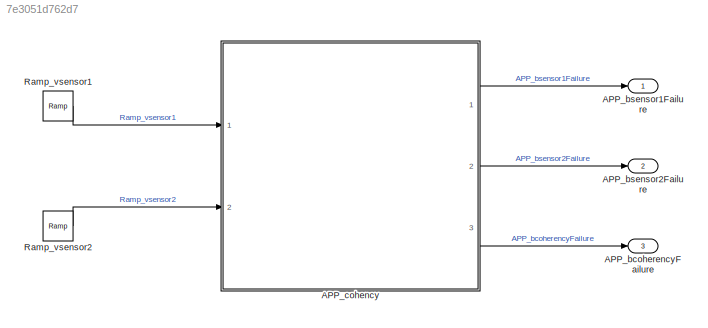
MODEL slx_7e3051d762d7
KIND model
CONFIG AbsTol = auto
CONFIG EnableMultiTasking = off
CONFIG FixedStep = auto
CONFIG MaxStep = auto
CONFIG MinStep = auto
CONFIG RelTol = 1e-3
CONFIG SampleTimeConstraint = Unconstrained
CONFIG SolverName = VariableStepAuto
CONFIG StartTime = 0.0
CONFIG StopTime = 10.0
BLOCK [Outport] APP_bcoherencyFailure
  Port = 3
BLOCK [Outport] APP_bsensor1Failure
BLOCK [Outport] APP_bsensor2Failure
  Port = 2
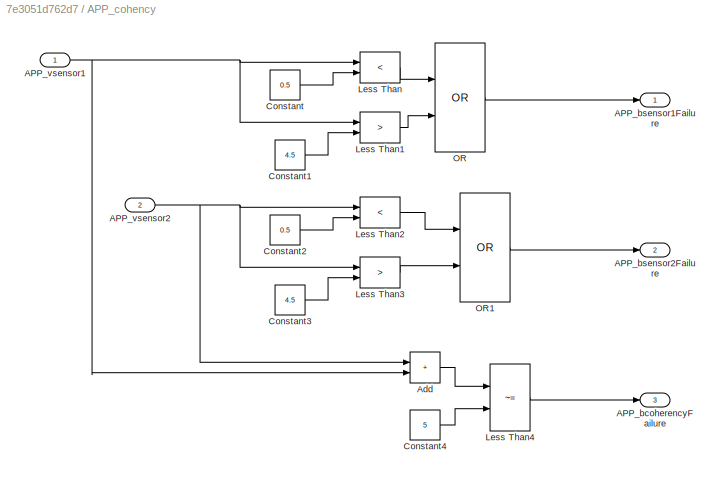
BLOCK [SubSystem] APP_cohency
  Ports = [2, 3]
  RequestExecContextInheritance = off
BLOCK [Outport] APP_cohency/APP_bcoherencyFailure
  Port = 3
BLOCK [Outport] APP_cohency/APP_bsensor1Failure
BLOCK [Outport] APP_cohency/APP_bsensor2Failure
  Port = 2
BLOCK [Inport] APP_cohency/APP_vsensor1
BLOCK [Inport] APP_cohency/APP_vsensor2
  Port = 2
BLOCK [Sum] APP_cohency/Add
  IconShape = rectangular
  Ports = [2, 1]
BLOCK [Constant] APP_cohency/Constant
  Value = 0.5
BLOCK [Constant] APP_cohency/Constant1
  Value = 4.5
BLOCK [Constant] APP_cohency/Constant2
  Value = 0.5
BLOCK [Constant] APP_cohency/Constant3
  Value = 4.5
BLOCK [Constant] APP_cohency/Constant4
  Value = 5
BLOCK [RelationalOperator] APP_cohency/Less Than
  InputSameDT = off
  Operator = <
  OutDataTypeStr = boolean
  Ports = [2, 1]
  RndMeth = Simplest
BLOCK [RelationalOperator] APP_cohency/Less Than1
  InputSameDT = off
  Operator = >
  OutDataTypeStr = boolean
  Ports = [2, 1]
  RndMeth = Simplest
BLOCK [RelationalOperator] APP_cohency/Less Than2
  InputSameDT = off
  Operator = <
  OutDataTypeStr = boolean
  Ports = [2, 1]
  RndMeth = Simplest
BLOCK [RelationalOperator] APP_cohency/Less Than3
  InputSameDT = off
  Operator = >
  OutDataTypeStr = boolean
  Ports = [2, 1]
  RndMeth = Simplest
BLOCK [RelationalOperator] APP_cohency/Less Than4
  InputSameDT = off
  Operator = ~=
  OutDataTypeStr = boolean
  Ports = [2, 1]
  RndMeth = Simplest
BLOCK [Logic] APP_cohency/OR
  AllPortsSameDT = off
  Operator = OR
  OutDataTypeStr = boolean
  Ports = [2, 1]
BLOCK [Logic] APP_cohency/OR1
  AllPortsSameDT = off
  Operator = OR
  OutDataTypeStr = boolean
  Ports = [2, 1]
BLOCK [Reference] Ramp_vsensor1  REF=simulink/Sources/Ramp
  Ports = [0, 1]
  SourceBlock = simulink/Sources/Ramp
  SourceProductBaseCode = SL
  SourceType = Ramp
BLOCK [Reference] Ramp_vsensor2  REF=simulink/Sources/Ramp
  Ports = [0, 1]
  SourceBlock = simulink/Sources/Ramp
  SourceProductBaseCode = SL
  SourceType = Ramp
NET APP_cohency/APP_vsensor1:1 -> APP_cohency/Add:2, APP_cohency/Less Than1:1, APP_cohency/Less Than:1
NET APP_cohency/APP_vsensor2:1 -> APP_cohency/Add:1, APP_cohency/Less Than2:1, APP_cohency/Less Than3:1
LINE APP_cohency/Add:1 -> APP_cohency/Less Than4:1
LINE APP_cohency/Constant1:1 -> APP_cohency/Less Than1:2
LINE APP_cohency/Constant2:1 -> APP_cohency/Less Than2:2
LINE APP_cohency/Constant3:1 -> APP_cohency/Less Than3:2
LINE APP_cohency/Constant4:1 -> APP_cohency/Less Than4:2
LINE APP_cohency/Constant:1 -> APP_cohency/Less Than:2
LINE APP_cohency/Less Than1:1 -> APP_cohency/OR:2
LINE APP_cohency/Less Than2:1 -> APP_cohency/OR1:1
LINE APP_cohency/Less Than3:1 -> APP_cohency/OR1:2
LINE APP_cohency/Less Than4:1 -> APP_cohency/APP_bcoherencyFailure:1
LINE APP_cohency/Less Than:1 -> APP_cohency/OR:1
LINE APP_cohency/OR1:1 -> APP_cohency/APP_bsensor2Failure:1
LINE APP_cohency/OR:1 -> APP_cohency/APP_bsensor1Failure:1
LINE APP_cohency:1 -> APP_bsensor1Failure:1
LINE APP_cohency:2 -> APP_bsensor2Failure:1
LINE APP_cohency:3 -> APP_bcoherencyFailure:1
LINE Ramp_vsensor1:1 -> APP_cohency:1
LINE Ramp_vsensor2:1 -> APP_cohency:2
note: NET lines group one-source signal fan-out (src -> all destinations, sorted); 1:1 wires keep LINE
